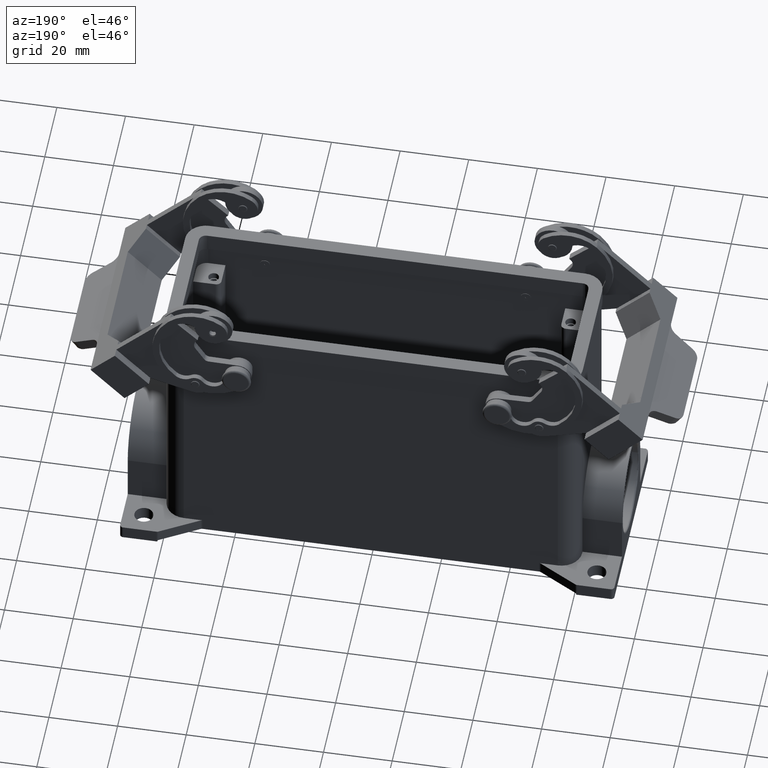
[diagram: clean part render]
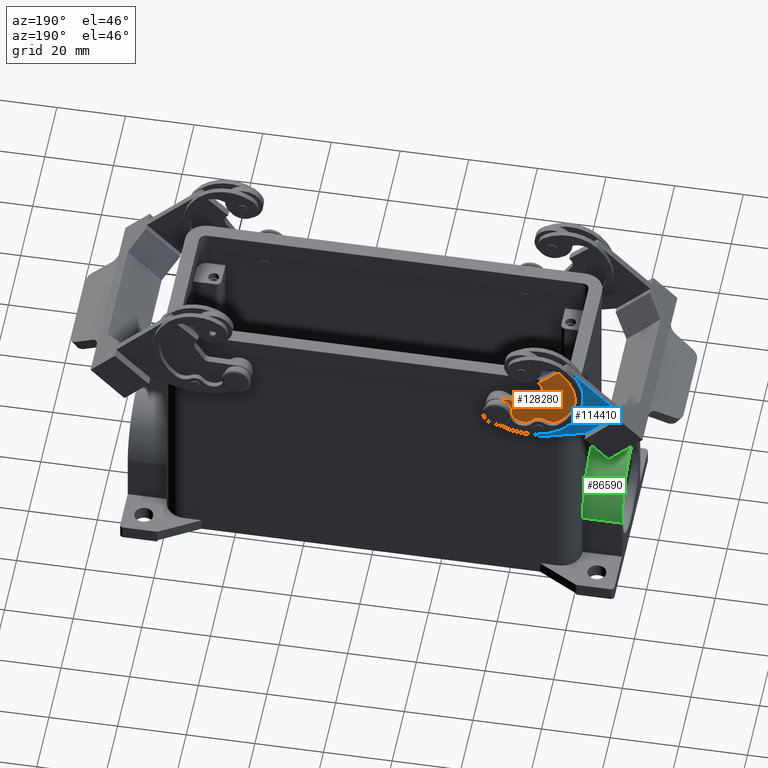
[diagram: same view with three faces highlighted in distinct colors, each labeled with its STEP entity id]
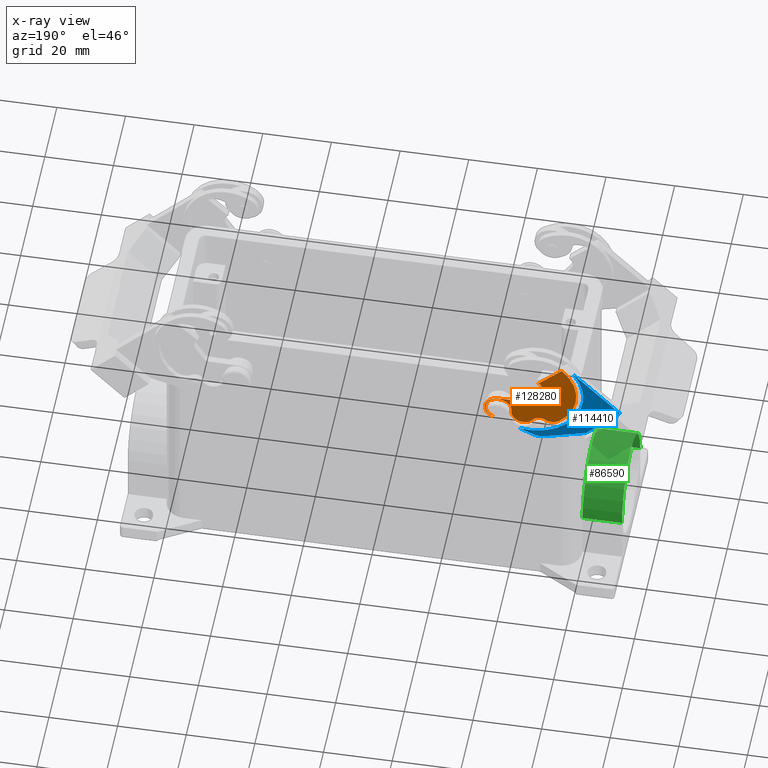
[diagram: x-ray of the same camera — body ghosted, the three highlighted faces saturated]
A machine part, auxiliary view with three faces highlighted in distinct colors.
The next image is the same camera in x-ray (body ghosted, the three faces saturated) — at least one of them is partly hidden behind the body in this view.
Their STEP definitions:

[orange] entity #128280 — the highlighted planar face has unit normal (0, 1, 0).
#46530=CARTESIAN_POINT('',(-35.3483495705505,26.25,16.8483495705505));
#46540=VERTEX_POINT('',#46530);
#46570=CARTESIAN_POINT('',(-38.,26.25,19.5));
#46580=DIRECTION('',(0.,-1.,0.));
#46590=DIRECTION('',(0.993305422488668,0.,0.115517694119162));
#46600=AXIS2_PLACEMENT_3D('',#46570,#46580,#46590);
#46610=CIRCLE('',#46600,3.75);
#46620=CARTESIAN_POINT('',(-41.7248953343325,26.25,19.0668086470531));
#46630=VERTEX_POINT('',#46620);
#46640=EDGE_CURVE('',#46540,#46630,#46610,.T.);
#124690=CARTESIAN_POINT('',(-36.5390290150134,26.25,15.7715664424323));
#124700=VERTEX_POINT('',#124690);
#124920=CARTESIAN_POINT('',(-36.3666678358523,26.25,15.8486679086174));
#124930=VERTEX_POINT('',#124920);
#124960=CARTESIAN_POINT('',(-36.3666678358523,26.25,15.8486679086174));
#124970=DIRECTION('',(-0.912833022845646,-3.763068E-14,
-0.408333041036946));
#124980=VECTOR('',#124970,0.188820052350694);
#124990=LINE('',#124960,#124980);
#125000=EDGE_CURVE('',#124930,#124700,#124990,.T.);
#125940=CARTESIAN_POINT('',(-56.4341114399375,26.25,38.1845579620986));
#125950=DIRECTION('',(0.731353701619169,7.679468E-16,-0.6819983600625));
#125960=VECTOR('',#125950,9.25249921532915);
#125970=LINE('',#125940,#125960);
#125980=CARTESIAN_POINT('',(-56.4341114399375,26.25,38.1845579620986));
#125990=VERTEX_POINT('',#125980);
#126000=CARTESIAN_POINT('',(-49.6672618895781,26.25,31.8743686707646));
#126010=VERTEX_POINT('',#126000);
#126020=EDGE_CURVE('',#125990,#126010,#125970,.T.);
#126310=CARTESIAN_POINT('',(-50.0208152801713,26.25,31.5208152801713));
#126320=VERTEX_POINT('',#126310);
#126370=CARTESIAN_POINT('',(-49.6672618895781,26.25,31.8743686707646));
#126380=DIRECTION('',(-0.707106781186551,0.,-0.707106781186544));
#126390=VECTOR('',#126380,0.499999999999961);
#126400=LINE('',#126370,#126390);
#126410=EDGE_CURVE('',#126010,#126320,#126400,.T.);
#126550=CARTESIAN_POINT('',(-50.3555512452086,26.25,28.4004650655216));
#126560=VERTEX_POINT('',#126550);
#126610=CARTESIAN_POINT('',(-48.253048327205,26.25,29.7530483272049));
#126620=DIRECTION('',(0.,-1.,0.));
#126630=DIRECTION('',(-0.841001167201471,0.,-0.541033304673348));
#126640=AXIS2_PLACEMENT_3D('',#126610,#126620,#126630);
#126650=CIRCLE('',#126640,2.5);
#126660=EDGE_CURVE('',#126320,#126560,#126650,.T.);
#126800=CARTESIAN_POINT('',(-47.7467831250408,26.25,24.3453042924824));
#126810=VERTEX_POINT('',#126800);
#126860=CARTESIAN_POINT('',(-50.3555512452086,26.25,28.4004650655216));
#126870=DIRECTION('',(0.541033304673346,0.,-0.841001167201472));
#126880=VECTOR('',#126870,4.82182538049648);
#126890=LINE('',#126860,#126880);
#126900=EDGE_CURVE('',#126560,#126810,#126890,.T.);
#127040=CARTESIAN_POINT('',(-46.512840753772,26.25,23.657107443995));
#127050=VERTEX_POINT('',#127040);
#127100=CARTESIAN_POINT('',(-46.4852813742386,26.25,25.1568542494924));
#127110=DIRECTION('',(0.,-1.,0.));
#127120=DIRECTION('',(-0.018372919688973,0.,-0.99983120366495));
#127130=AXIS2_PLACEMENT_3D('',#127100,#127110,#127120);
#127140=CIRCLE('',#127130,1.5);
#127150=EDGE_CURVE('',#126810,#127050,#127140,.T.);
#127290=CARTESIAN_POINT('',(-37.9265083212442,26.25,23.4993248146598));
#127300=VERTEX_POINT('',#127290);
#127350=CARTESIAN_POINT('',(-46.512840753772,26.25,23.657107443995));
#127360=DIRECTION('',(0.99983120366495,0.,-0.018372919688964));
#127370=VECTOR('',#127360,8.58778201865884);
#127380=LINE('',#127350,#127370);
#127390=EDGE_CURVE('',#127050,#127300,#127380,.T.);
#127520=CARTESIAN_POINT('',(-38.,26.25,19.5));
#127530=DIRECTION('',(0.,1.,0.));
#127540=DIRECTION('',(-0.018372919688964,0.,-0.99983120366495));
#127550=AXIS2_PLACEMENT_3D('',#127520,#127530,#127540);
#127560=CIRCLE('',#127550,4.);
#127570=EDGE_CURVE('',#127300,#124930,#127560,.T.);
#127620=CARTESIAN_POINT('',(-47.3310290347676,26.25,26.6735273398673));
#127630=DIRECTION('',(0.,1.,0.));
#127640=DIRECTION('',(1.,-0.,0.));
#127650=AXIS2_PLACEMENT_3D('',#127620,#127630,#127640);
#127660=PLANE('',#127650);
#127670=CARTESIAN_POINT('',(-46.6620580695352,26.25,28.1620580695352));
#127680=DIRECTION('',(0.,1.,0.));
#127690=DIRECTION('',(-0.646928317031778,0.,-0.762550819698223));
#127700=AXIS2_PLACEMENT_3D('',#127670,#127680,#127690);
#127710=CIRCLE('',#127700,14.);
#127720=CARTESIAN_POINT('',(-55.7190545079801,26.25,17.4863465937601));
#127730=VERTEX_POINT('',#127720);
#127740=CARTESIAN_POINT('',(-56.5615530061469,26.25,38.0615530061469));
#127750=VERTEX_POINT('',#127740);
#127760=EDGE_CURVE('',#127730,#127750,#127710,.T.);
#127770=ORIENTED_EDGE('',*,*,#127760,.T.);
#127780=CARTESIAN_POINT('',(-53.4548053983689,26.25,20.1552744627039));
#127790=DIRECTION('',(0.,1.,0.));
#127800=DIRECTION('',(0.560489028578184,0.,-0.82816184942527));
#127810=AXIS2_PLACEMENT_3D('',#127780,#127790,#127800);
#127820=CIRCLE('',#127810,3.5);
#127830=CARTESIAN_POINT('',(-51.4930937983452,26.25,17.2567079897154));
#127840=VERTEX_POINT('',#127830);
#127850=EDGE_CURVE('',#127840,#127730,#127820,.T.);
#127860=ORIENTED_EDGE('',*,*,#127850,.T.);
#127870=CARTESIAN_POINT('',(-50.0918712268998,26.25,15.1863033661522));
#127880=DIRECTION('',(0.,-1.,0.));
#127890=DIRECTION('',(0.560489028578182,0.,-0.828161849425271));
#127900=AXIS2_PLACEMENT_3D('',#127870,#127880,#127890);
#127910=CIRCLE('',#127900,2.5);
#127920=CARTESIAN_POINT('',(-48.0542016794594,26.25,16.6347172626038));
#127930=VERTEX_POINT('',#127920);
#127940=EDGE_CURVE('',#127930,#127840,#127910,.T.);
#127950=ORIENTED_EDGE('',*,*,#127940,.T.);
#127960=CARTESIAN_POINT('',(-45.2014643130428,26.25,18.6624967176361));
#127970=DIRECTION('',(0.,1.,0.));
#127980=DIRECTION('',(0.993305422488668,0.,0.115517694119163));
#127990=AXIS2_PLACEMENT_3D('',#127960,#127970,#127980);
#128000=CIRCLE('',#127990,3.5);
#128010=EDGE_CURVE('',#46630,#127930,#128000,.T.);
#128020=ORIENTED_EDGE('',*,*,#128010,.T.);
#128030=ORIENTED_EDGE('',*,*,#46640,.T.);
#128040=CARTESIAN_POINT('',(-46.6620580695352,26.25,28.1620580695352));
#128050=DIRECTION('',(0.,-1.,0.));
#128060=DIRECTION('',(-0.707106781186548,0.,0.707106781186547));
#128070=AXIS2_PLACEMENT_3D('',#128040,#128050,#128060);
#128080=CIRCLE('',#128070,16.);
#128090=EDGE_CURVE('',#124700,#46540,#128080,.T.);
#128100=ORIENTED_EDGE('',*,*,#128090,.T.);
#128110=ORIENTED_EDGE('',*,*,#125000,.T.);
#128120=ORIENTED_EDGE('',*,*,#127570,.T.);
#128130=ORIENTED_EDGE('',*,*,#127390,.T.);
#128140=ORIENTED_EDGE('',*,*,#127150,.T.);
#128150=ORIENTED_EDGE('',*,*,#126900,.T.);
#128160=ORIENTED_EDGE('',*,*,#126660,.T.);
#128170=ORIENTED_EDGE('',*,*,#126410,.T.);
#128180=ORIENTED_EDGE('',*,*,#126020,.T.);
#128190=CARTESIAN_POINT('',(-53.0260191002141,26.25,34.5260191002141));
#128200=DIRECTION('',(0.,1.,0.));
#128210=DIRECTION('',(-0.707106781186548,0.,0.707106781186547));
#128220=AXIS2_PLACEMENT_3D('',#128190,#128200,#128210);
#128230=CIRCLE('',#128220,5.);
#128240=EDGE_CURVE('',#127750,#125990,#128230,.T.);
#128250=ORIENTED_EDGE('',*,*,#128240,.T.);
#128260=EDGE_LOOP('',(#128250,#128180,#128170,#128160,#128150,#128140,
#128130,#128120,#128110,#128100,#128030,#128020,#127950,#127860,#127770)
);
#128270=FACE_OUTER_BOUND('',#128260,.T.);
#128280=ADVANCED_FACE('',(#128270),#127660,.T.);

[blue] entity #114410 — the highlighted planar face has unit normal (0, 1, 0).
#111800=CARTESIAN_POINT('',(-63.4547186257614,26.25,13.8447186257614));
#111810=VERTEX_POINT('',#111800);
#111840=CARTESIAN_POINT('',(-63.4547186257614,26.25,13.8447186257614));
#111850=DIRECTION('',(-0.707106781186548,-5.07542E-16,0.707106781186548)
);
#111860=VECTOR('',#111850,13.9996836557707);
#111870=LINE('',#111840,#111860);
#111880=CARTESIAN_POINT('',(-73.3539898732234,26.25,23.7439898732233));
#111890=VERTEX_POINT('',#111880);
#111900=EDGE_CURVE('',#111810,#111890,#111870,.T.);
#112860=CARTESIAN_POINT('',(-63.4558441227157,26.25,13.8431457505076));
#112870=VERTEX_POINT('',#112860);
#112900=CARTESIAN_POINT('',(-63.4558441227157,26.25,13.8431457505076));
#112910=DIRECTION('',(-0.707106781180932,-2.246106E-11,0.707106781192163
));
#112920=VECTOR('',#112910,0.000316344229323);
#112930=LINE('',#112900,#112920);
#112940=CARTESIAN_POINT('',(-63.4560678118655,26.25,13.8433694396574));
#112950=VERTEX_POINT('',#112940);
#112960=EDGE_CURVE('',#112870,#112950,#112930,.T.);
#113860=CARTESIAN_POINT('',(-58.7632360038903,26.25,23.7467331633359));
#113870=DIRECTION('',(0.,1.,0.));
#113880=DIRECTION('',(1.,-0.,0.));
#113890=AXIS2_PLACEMENT_3D('',#113860,#113870,#113880);
#113900=PLANE('',#113890);
#113910=ORIENTED_EDGE('',*,*,#112960,.T.);
#113920=CARTESIAN_POINT('',(-51.479281828251,26.25,10.3830943626226));
#113930=DIRECTION('',(-0.960710854427883,0.,0.277551173992199));
#113940=VECTOR('',#113930,12.4663547198048);
#113950=LINE('',#113920,#113940);
#113960=CARTESIAN_POINT('',(-51.479281828251,26.25,10.3830943626226));
#113970=VERTEX_POINT('',#113960);
#113980=EDGE_CURVE('',#113970,#112870,#113950,.T.);
#113990=ORIENTED_EDGE('',*,*,#113980,.T.);
#114000=CARTESIAN_POINT('',(-50.09152595829,26.25,15.186648634762));
#114010=DIRECTION('',(0.,1.,0.));
#114020=DIRECTION('',(-0.408333041036939,0.,0.912833022845649));
#114030=AXIS2_PLACEMENT_3D('',#114000,#114010,#114020);
#114040=CIRCLE('',#114030,5.);
#114050=CARTESIAN_POINT('',(-48.0498607531053,26.25,10.6224835205338));
#114060=VERTEX_POINT('',#114050);
#114070=EDGE_CURVE('',#114060,#113970,#114040,.T.);
#114080=ORIENTED_EDGE('',*,*,#114070,.T.);
#114090=CARTESIAN_POINT('',(-44.1724821345572,26.25,12.3569319496974));
#114100=DIRECTION('',(-0.912833022845652,1.672797E-15,-0.408333041036934
));
#114110=VECTOR('',#114100,4.24763184668852);
#114120=LINE('',#114090,#114110);
#114130=CARTESIAN_POINT('',(-44.1724821345572,26.25,12.3569319496974));
#114140=VERTEX_POINT('',#114130);
#114150=EDGE_CURVE('',#114140,#114060,#114120,.T.);
#114160=ORIENTED_EDGE('',*,*,#114150,.T.);
#114170=CARTESIAN_POINT('',(-46.6620580695352,26.25,28.1620580695352));
#114180=DIRECTION('',(0.,-1.,0.));
#114190=DIRECTION('',(-0.707106781186548,0.,0.707106781186547));
#114200=AXIS2_PLACEMENT_3D('',#114170,#114180,#114190);
#114210=CIRCLE('',#114200,16.);
#114220=CARTESIAN_POINT('',(-59.7911620545369,26.25,37.3068176919098));
#114230=VERTEX_POINT('',#114220);
#114240=EDGE_CURVE('',#114230,#114140,#114210,.T.);
#114250=ORIENTED_EDGE('',*,*,#114240,.T.);
#114260=CARTESIAN_POINT('',(-73.3539898732234,26.25,23.7439898732233));
#114270=DIRECTION('',(0.707106781186548,0.,0.707106781186547));
#114280=VECTOR('',#114270,19.1807350453175);
#114290=LINE('',#114260,#114280);
#114300=EDGE_CURVE('',#111890,#114230,#114290,.T.);
#114310=ORIENTED_EDGE('',*,*,#114300,.T.);
#114320=ORIENTED_EDGE('',*,*,#111900,.T.);
#114330=CARTESIAN_POINT('',(-63.4560678118655,26.25,13.8433694396574));
#114340=DIRECTION('',(0.707106781187944,3.723946E-12,0.707106781185151))
;
#114350=VECTOR('',#114340,0.00190803728649);
#114360=LINE('',#114330,#114350);
#114370=EDGE_CURVE('',#112950,#111810,#114360,.T.);
#114380=ORIENTED_EDGE('',*,*,#114370,.T.);
#114390=EDGE_LOOP('',(#114380,#114320,#114310,#114250,#114160,#114080,
#113990,#113910));
#114400=FACE_OUTER_BOUND('',#114390,.T.);
#114410=ADVANCED_FACE('',(#114400),#113900,.T.);

[green] entity #86590 — the highlighted cylindrical surface (partial cylindrical patch) has radius 15.14 mm, axis along (1, 0, 0).
#79200=CARTESIAN_POINT('',(-72.,-15.14,-33.11));
#79210=VERTEX_POINT('',#79200);
#79240=CARTESIAN_POINT('',(-60.5,-15.14,-33.11));
#79250=DIRECTION('',(-1.,0.,0.));
#79260=VECTOR('',#79250,11.5);
#79270=LINE('',#79240,#79260);
#79280=CARTESIAN_POINT('',(-60.5,-15.14,-33.11));
#79290=VERTEX_POINT('',#79280);
#79300=EDGE_CURVE('',#79290,#79210,#79270,.T.);
#81090=CARTESIAN_POINT('',(-60.5,15.14,-33.11));
#81100=VERTEX_POINT('',#81090);
#81130=CARTESIAN_POINT('',(-60.5,15.14,-33.11));
#81140=DIRECTION('',(-1.,0.,0.));
#81150=VECTOR('',#81140,11.5);
#81160=LINE('',#81130,#81150);
#81170=CARTESIAN_POINT('',(-72.,15.14,-33.11));
#81180=VERTEX_POINT('',#81170);
#81190=EDGE_CURVE('',#81100,#81180,#81160,.T.);
#81800=CARTESIAN_POINT('',(-72.,0.,-33.11));
#81810=DIRECTION('',(-1.,0.,0.));
#81820=DIRECTION('',(0.,-1.,0.));
#81830=AXIS2_PLACEMENT_3D('',#81800,#81810,#81820);
#81840=CIRCLE('',#81830,15.14);
#81850=EDGE_CURVE('',#79210,#81180,#81840,.T.);
#86420=CARTESIAN_POINT('',(-72.,1.77635683940025E-15,-33.11));
#86430=DIRECTION('',(1.,0.,0.));
#86440=DIRECTION('',(0.,-1.,0.));
#86450=AXIS2_PLACEMENT_3D('',#86420,#86430,#86440);
#86460=CYLINDRICAL_SURFACE('',#86450,15.14);
#86470=ORIENTED_EDGE('',*,*,#81850,.F.);
#86480=ORIENTED_EDGE('',*,*,#81190,.T.);
#86490=CARTESIAN_POINT('',(-60.5,0.,-33.11));
#86500=DIRECTION('',(1.,0.,0.));
#86510=DIRECTION('',(0.,-1.,0.));
#86520=AXIS2_PLACEMENT_3D('',#86490,#86500,#86510);
#86530=CIRCLE('',#86520,15.14);
#86540=EDGE_CURVE('',#81100,#79290,#86530,.T.);
#86550=ORIENTED_EDGE('',*,*,#86540,.F.);
#86560=ORIENTED_EDGE('',*,*,#79300,.F.);
#86570=EDGE_LOOP('',(#86560,#86550,#86480,#86470));
#86580=FACE_OUTER_BOUND('',#86570,.T.);
#86590=ADVANCED_FACE('',(#86580),#86460,.T.);